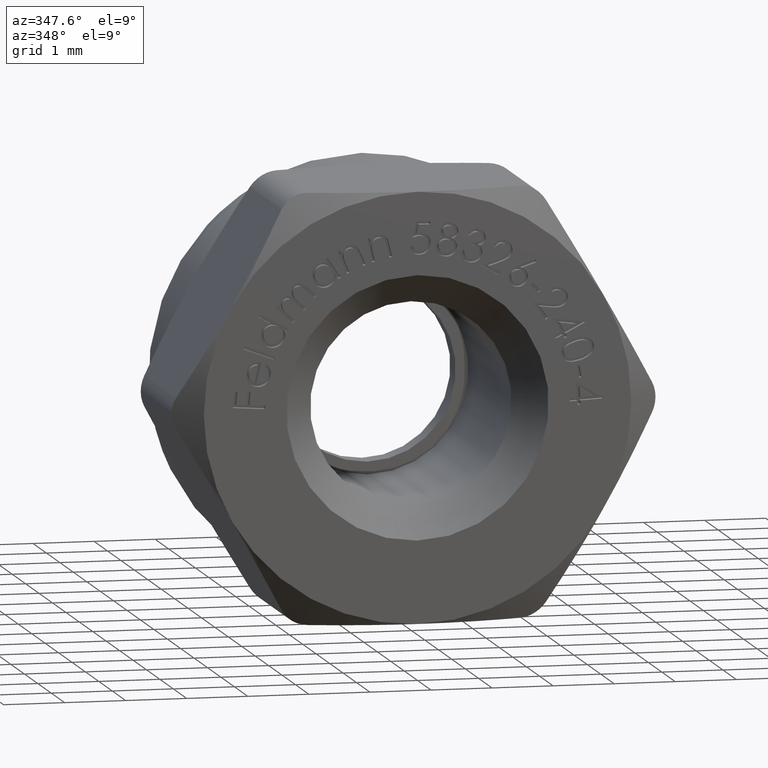
[diagram: clean part render]
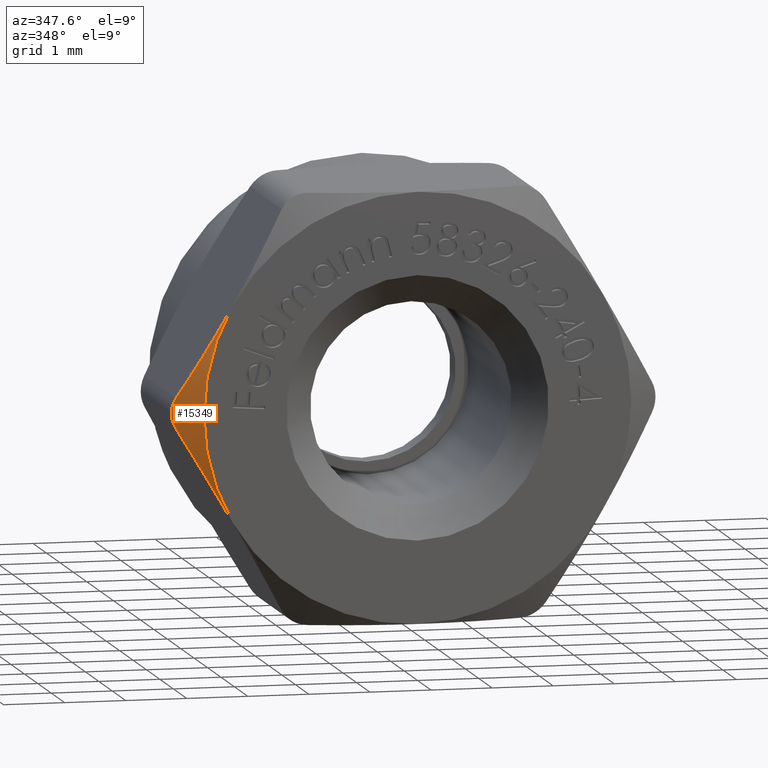
[diagram: same view with one face highlighted and labeled with its STEP entity id]
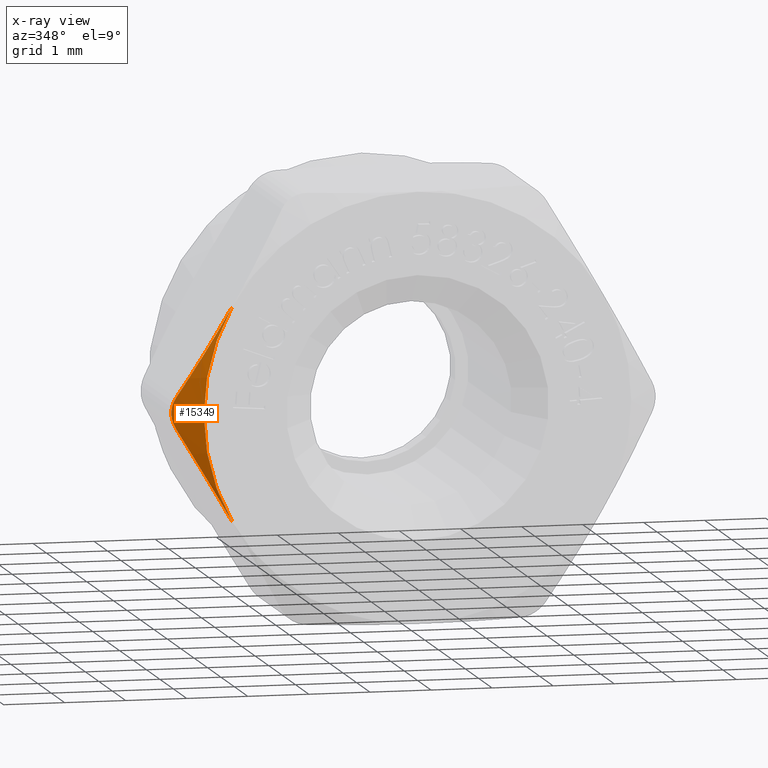
[diagram: x-ray of the same camera — body ghosted, the highlighted face saturated]
A machine part, auxiliary view. The second image highlights one B-rep face of the part: STEP entity #15349.
The next image is the same camera in x-ray: the body ghosted, the highlighted face saturated — about 0% of this face is hidden behind the body in this view.
In plain terms, the highlighted conical surface has half-angle 56.31 deg.
Its self-contained STEP definition (entity closure, byte-faithful):
#136 = CARTESIAN_POINT ( 'NONE',  ( -3.897114317029966468, -1.179916774697786330, -0.2500000000000001665 ) ) ;
#158 = CARTESIAN_POINT ( 'NONE',  ( -3.327064285394071952, -1.450000000000044365, 1.237355617649614103 ) ) ;
#273 = VERTEX_POINT ( 'NONE', #10981 ) ;
#521 = B_SPLINE_CURVE_WITH_KNOTS ( 'NONE', 3,
 ( #7146, #10860, #12133, #3695, #4866, #12030 ),
 .UNSPECIFIED., .F., .F.,
 ( 4, 2, 4 ),
 ( 0.002052690976914608046, 0.002923095195338070926, 0.003793499413761533805 ),
 .UNSPECIFIED. ) ;
#558 = AXIS2_PLACEMENT_3D ( 'NONE', #11740, #2068, #8120 ) ;
#582 = FACE_OUTER_BOUND ( 'NONE', #14327, .T. ) ;
#937 = CARTESIAN_POINT ( 'NONE',  ( -3.964019881333852524, -1.140646539615123523, 0.08875208853831384470 ) ) ;
#984 = ORIENTED_EDGE ( 'NONE', *, *, #11547, .T. ) ;
#2068 = DIRECTION ( 'NONE',  ( -0.000000000000000000, 1.000000000000000000, -0.000000000000000000 ) ) ;
#2154 = EDGE_CURVE ( 'NONE', #273, #4780, #14353, .T. ) ;
#2457 = EDGE_CURVE ( 'NONE', #13598, #273, #9360, .T. ) ;
#2950 = ORIENTED_EDGE ( 'NONE', *, *, #3839, .F. ) ;
#3285 = CARTESIAN_POINT ( 'NONE',  ( -3.939904777791623847, -1.154611479666615148, 0.1758847478815268595 ) ) ;
#3695 = CARTESIAN_POINT ( 'NONE',  ( -3.614190704881815819, -1.330968545635699662, -0.7400380709015086378 ) ) ;
#3839 = EDGE_CURVE ( 'NONE', #4780, #6175, #521, .T. ) ;
#4780 = VERTEX_POINT ( 'NONE', #6548 ) ;
#4866 = CARTESIAN_POINT ( 'NONE',  ( -3.756401705769716770, -1.263130978965909090, -0.4937213919684401708 ) ) ;
#5246 = B_SPLINE_CURVE_WITH_KNOTS ( 'NONE', 3,
 ( #5628, #3285, #937, #5841, #14328, #12989 ),
 .UNSPECIFIED., .F., .F.,
 ( 4, 2, 4 ),
 ( 5.421010862427522170E-20, 0.0002642211017210703452, 0.0005284422034421405821 ),
 .UNSPECIFIED. ) ;
#5450 = CARTESIAN_POINT ( 'NONE',  ( -3.897114317029966468, -1.179916774697786330, 0.2500000000000000555 ) ) ;
#5628 = CARTESIAN_POINT ( 'NONE',  ( -3.897114317029966468, -1.179916774697786330, 0.2500000000000000555 ) ) ;
#5841 = CARTESIAN_POINT ( 'NONE',  ( -3.964182922678288978, -1.140551555199826206, -0.08782876490633985400 ) ) ;
#6175 = VERTEX_POINT ( 'NONE', #136 ) ;
#6548 = CARTESIAN_POINT ( 'NONE',  ( -3.031088913245533867, -1.449999999999999956, -1.750000000000001776 ) ) ;
#6904 = CARTESIAN_POINT ( 'NONE',  ( 0.000000000000000000, -1.449999999999999956, 0.000000000000000000 ) ) ;
#6970 = ORIENTED_EDGE ( 'NONE', *, *, #2457, .F. ) ;
#7146 = CARTESIAN_POINT ( 'NONE',  ( -3.031088913245533867, -1.449999999999999956, -1.750000000000001776 ) ) ;
#7816 = AXIS2_PLACEMENT_3D ( 'NONE', #6904, #14240, #15431 ) ;
#8070 = ORIENTED_EDGE ( 'NONE', *, *, #2154, .F. ) ;
#8120 = DIRECTION ( 'NONE',  ( 0.000000000000000000, 0.000000000000000000, -1.000000000000000000 ) ) ;
#8687 = CARTESIAN_POINT ( 'NONE',  ( -3.031088913245534755, -1.449999999999999956, 1.750000000000001110 ) ) ;
#9360 = B_SPLINE_CURVE_WITH_KNOTS ( 'NONE', 3,
 ( #13392, #14720, #158, #8687 ),
 .UNSPECIFIED., .F., .F.,
 ( 4, 4 ),
 ( 0.0002997417617328234263, 0.002052690976914605444 ),
 .UNSPECIFIED. ) ;
#10860 = CARTESIAN_POINT ( 'NONE',  ( -3.178051649094565612, -1.450000000000046141, -1.495453074690142437 ) ) ;
#10981 = CARTESIAN_POINT ( 'NONE',  ( -3.031088913245534755, -1.449999999999999956, 1.750000000000001110 ) ) ;
#11547 = EDGE_CURVE ( 'NONE', #13598, #6175, #5246, .T. ) ;
#11740 = CARTESIAN_POINT ( 'NONE',  ( 0.000000000000000000, -1.449999999999999956, 0.000000000000000000 ) ) ;
#12030 = CARTESIAN_POINT ( 'NONE',  ( -3.897114317029966468, -1.179916774697786330, -0.2500000000000001665 ) ) ;
#12133 = CARTESIAN_POINT ( 'NONE',  ( -3.325665941994035091, -1.424540697476238682, -1.239777619464908165 ) ) ;
#12362 = CONICAL_SURFACE ( 'NONE', #558, 3.499999999999999556, 0.9827937232473289431 ) ;
#12989 = CARTESIAN_POINT ( 'NONE',  ( -3.897114317029966468, -1.179916774697786330, -0.2500000000000001665 ) ) ;
#13392 = CARTESIAN_POINT ( 'NONE',  ( -3.897114317029966468, -1.179916774697786330, 0.2500000000000000555 ) ) ;
#13598 = VERTEX_POINT ( 'NONE', #5450 ) ;
#14240 = DIRECTION ( 'NONE',  ( -0.000000000000000000, -1.000000000000000000, -0.000000000000000000 ) ) ;
#14327 = EDGE_LOOP ( 'NONE', ( #6970, #984, #2950, #8070 ) ) ;
#14328 = CARTESIAN_POINT ( 'NONE',  ( -3.939921686799170431, -1.154601480068174535, -0.1758554606213721672 ) ) ;
#14353 = CIRCLE ( 'NONE', #7816, 3.499999999999999556 ) ;
#14720 = CARTESIAN_POINT ( 'NONE',  ( -3.614682679105008400, -1.346940354173557397, 0.7391859465509240668 ) ) ;
#15349 = ADVANCED_FACE ( 'NONE', ( #582 ), #12362, .T. ) ;
#15431 = DIRECTION ( 'NONE',  ( 0.000000000000000000, 0.000000000000000000, 1.000000000000000000 ) ) ;